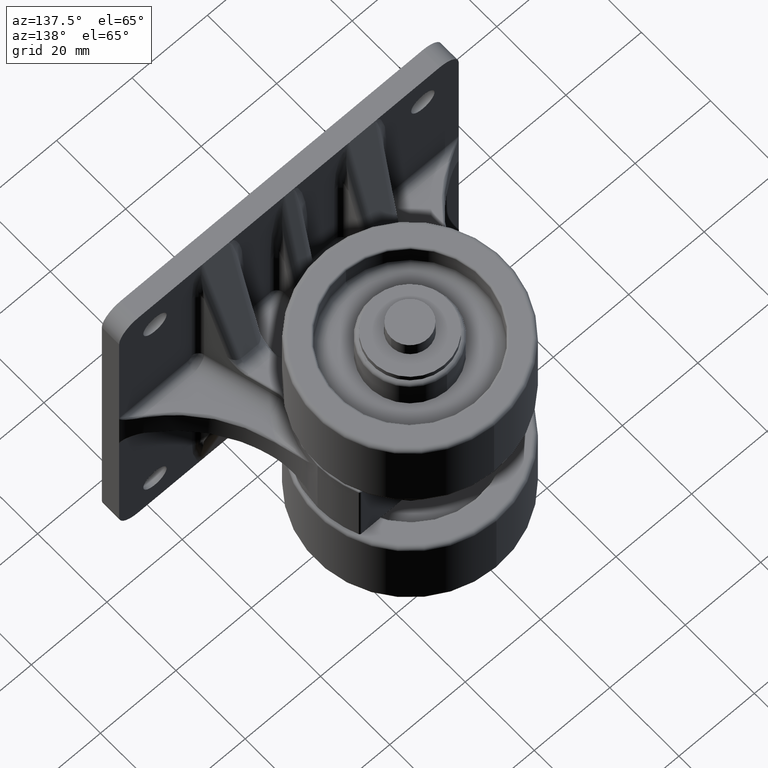
[diagram: clean part render]
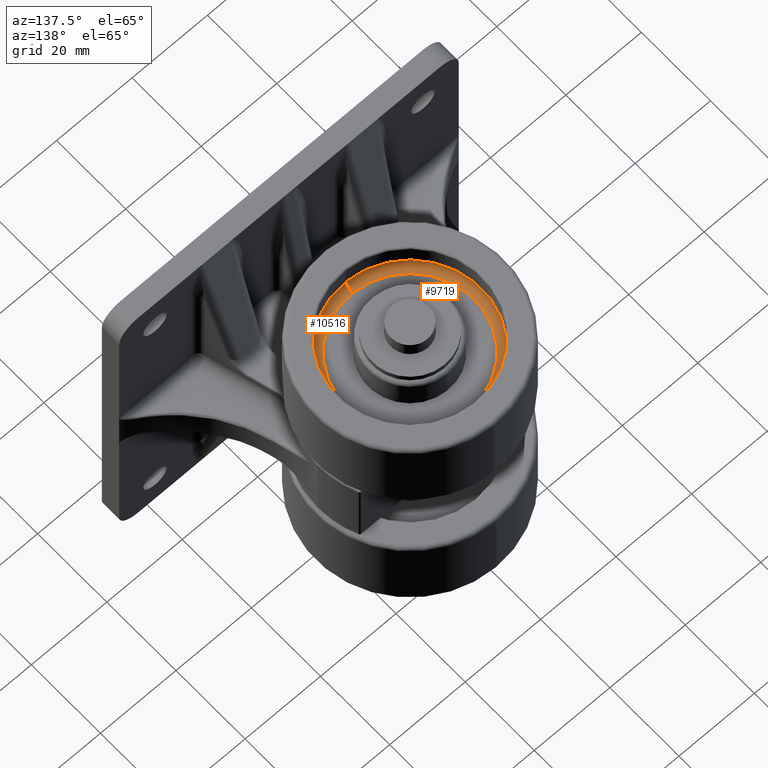
[diagram: same view with one multi-face feature highlighted, each face labeled with its STEP entity id]
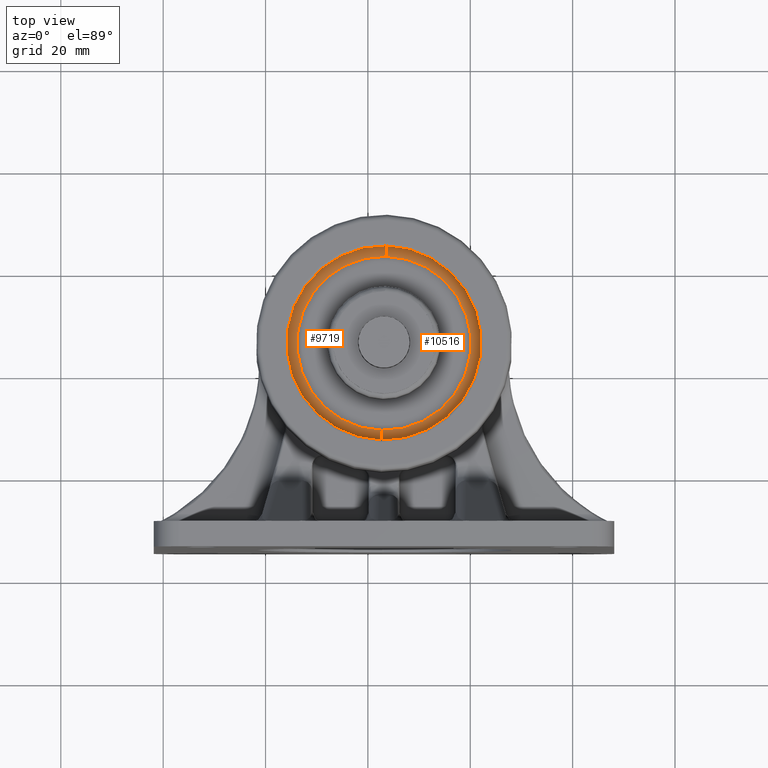
[diagram: same view with one multi-face feature highlighted, each face labeled with its STEP entity id]
A machine part, auxiliary view. The highlighted faces form ONE feature: a constant-radius fillet chain: 2 tangent blend faces with common blend radius 2 mm. The faces share edges in the B-rep.
A second angle (top view) of the same feature is appended — it is thin or edge-on in the first view.
Their STEP definitions:
[1] entity #9719 (Torus):
#52 = CARTESIAN_POINT ( 'NONE',  ( -28.50000000000000000, -18.99449178836998400, -45.45747317030110000 ) ) ;
#83 = EDGE_CURVE ( 'NONE', #16835, #12613, #6996, .T. ) ;
#84 = AXIS2_PLACEMENT_3D ( 'NONE', #15809, #7654, #2115 ) ;
#174 = EDGE_CURVE ( 'NONE', #16835, #5191, #5774, .T. ) ;
#279 = ORIENTED_EDGE ( 'NONE', *, *, #14841, .F. ) ;
#438 = CARTESIAN_POINT ( 'NONE',  ( -26.50000000000000400, -16.99507160012051400, -45.40931809974308900 ) ) ;
#747 = DIRECTION ( 'NONE',  ( 0.0000000000000000000, -0.9997100941247358800, -0.02407753527900523300 ) ) ;
#1888 = DIRECTION ( 'NONE',  ( 0.0000000000000000000, -0.9997100941247359900, -0.02407753527900523300 ) ) ;
#2115 = DIRECTION ( 'NONE',  ( 0.0000000000000000000, -0.9997100941247358800, -0.02407753527900597200 ) ) ;
#2198 = TOROIDAL_SURFACE ( 'NONE', #14664, 17.00000000000000000, 2.000000000000000000 ) ;
#3276 = EDGE_CURVE ( 'NONE', #5191, #6435, #13464, .T. ) ;
#4032 = DIRECTION ( 'NONE',  ( -1.000000000000000000, 0.0000000000000000000, 0.0000000000000000000 ) ) ;
#4118 = ORIENTED_EDGE ( 'NONE', *, *, #83, .T. ) ;
#4157 = AXIS2_PLACEMENT_3D ( 'NONE', #15856, #4485, #7330 ) ;
#4485 = DIRECTION ( 'NONE',  ( 0.0000000000000000000, 0.02407753527900525000, -0.9997100941247359900 ) ) ;
#4597 = CARTESIAN_POINT ( 'NONE',  ( -26.50000000000000400, 16.99507160012051400, -44.59068190025690400 ) ) ;
#5191 = VERTEX_POINT ( 'NONE', #438 ) ;
#5209 = FACE_OUTER_BOUND ( 'NONE', #15731, .T. ) ;
#5774 = CIRCLE ( 'NONE', #8702, 17.00000000000000400 ) ;
#6009 = ORIENTED_EDGE ( 'NONE', *, *, #3276, .F. ) ;
#6435 = VERTEX_POINT ( 'NONE', #52 ) ;
#6539 = CIRCLE ( 'NONE', #7793, 19.00000000000000400 ) ;
#6996 = CIRCLE ( 'NONE', #84, 1.999999999999999800 ) ;
#7330 = DIRECTION ( 'NONE',  ( 0.0000000000000000000, 0.9997100941247358800, 0.02407753527900597200 ) ) ;
#7654 = DIRECTION ( 'NONE',  ( 0.0000000000000000000, -0.02407753527900537100, 0.9997100941247359900 ) ) ;
#7793 = AXIS2_PLACEMENT_3D ( 'NONE', #16612, #8471, #747 ) ;
#8332 = DIRECTION ( 'NONE',  ( -1.000000000000000000, 0.0000000000000000000, 0.0000000000000000000 ) ) ;
#8471 = DIRECTION ( 'NONE',  ( 1.000000000000000000, -0.0000000000000000000, -0.0000000000000000000 ) ) ;
#8702 = AXIS2_PLACEMENT_3D ( 'NONE', #11991, #4032, #13307 ) ;
#9719 = ADVANCED_FACE ( 'NONE', ( #5209 ), #2198, .F. ) ;
#10474 = CARTESIAN_POINT ( 'NONE',  ( -28.50000000000000000, 0.0000000000000000000, -45.00000000000000000 ) ) ;
#11991 = CARTESIAN_POINT ( 'NONE',  ( -26.50000000000000400, 0.0000000000000000000, -45.00000000000000000 ) ) ;
#12613 = VERTEX_POINT ( 'NONE', #16850 ) ;
#13307 = DIRECTION ( 'NONE',  ( 0.0000000000000000000, -0.9997100941247358800, -0.02407753527900514600 ) ) ;
#13464 = CIRCLE ( 'NONE', #4157, 1.999999999999999800 ) ;
#14352 = ORIENTED_EDGE ( 'NONE', *, *, #174, .F. ) ;
#14664 = AXIS2_PLACEMENT_3D ( 'NONE', #10474, #8332, #1888 ) ;
#14841 = EDGE_CURVE ( 'NONE', #6435, #12613, #6539, .T. ) ;
#15731 = EDGE_LOOP ( 'NONE', ( #14352, #4118, #279, #6009 ) ) ;
#15809 = CARTESIAN_POINT ( 'NONE',  ( -28.50000000000000000, 16.99507160012051400, -44.59068190025690400 ) ) ;
#15856 = CARTESIAN_POINT ( 'NONE',  ( -28.50000000000000000, -16.99507160012051400, -45.40931809974308900 ) ) ;
#16612 = CARTESIAN_POINT ( 'NONE',  ( -28.50000000000000000, 0.0000000000000000000, -45.00000000000000000 ) ) ;
#16835 = VERTEX_POINT ( 'NONE', #4597 ) ;
#16850 = CARTESIAN_POINT ( 'NONE',  ( -28.50000000000000000, 18.99449178836998400, -44.54252682969890000 ) ) ;
[2] entity #10516 (Torus):
#52 = CARTESIAN_POINT ( 'NONE',  ( -28.50000000000000000, -18.99449178836998400, -45.45747317030110000 ) ) ;
#83 = EDGE_CURVE ( 'NONE', #16835, #12613, #6996, .T. ) ;
#84 = AXIS2_PLACEMENT_3D ( 'NONE', #15809, #7654, #2115 ) ;
#438 = CARTESIAN_POINT ( 'NONE',  ( -26.50000000000000400, -16.99507160012051400, -45.40931809974308900 ) ) ;
#804 = CIRCLE ( 'NONE', #6629, 17.00000000000000400 ) ;
#1129 = CARTESIAN_POINT ( 'NONE',  ( -26.50000000000000400, 0.0000000000000000000, -45.00000000000000000 ) ) ;
#2115 = DIRECTION ( 'NONE',  ( 0.0000000000000000000, -0.9997100941247358800, -0.02407753527900597200 ) ) ;
#2386 = DIRECTION ( 'NONE',  ( 0.0000000000000000000, -0.9997100941247358800, -0.02407753527900514600 ) ) ;
#2802 = TOROIDAL_SURFACE ( 'NONE', #11538, 17.00000000000000000, 2.000000000000000000 ) ;
#3251 = CARTESIAN_POINT ( 'NONE',  ( -28.50000000000000000, 0.0000000000000000000, -45.00000000000000000 ) ) ;
#3276 = EDGE_CURVE ( 'NONE', #5191, #6435, #13464, .T. ) ;
#3343 = CIRCLE ( 'NONE', #13876, 19.00000000000000400 ) ;
#4157 = AXIS2_PLACEMENT_3D ( 'NONE', #15856, #4485, #7330 ) ;
#4485 = DIRECTION ( 'NONE',  ( 0.0000000000000000000, 0.02407753527900525000, -0.9997100941247359900 ) ) ;
#4520 = DIRECTION ( 'NONE',  ( 0.0000000000000000000, -0.9997100941247359900, -0.02407753527900523300 ) ) ;
#4597 = CARTESIAN_POINT ( 'NONE',  ( -26.50000000000000400, 16.99507160012051400, -44.59068190025690400 ) ) ;
#5191 = VERTEX_POINT ( 'NONE', #438 ) ;
#5803 = ORIENTED_EDGE ( 'NONE', *, *, #12579, .F. ) ;
#6018 = CARTESIAN_POINT ( 'NONE',  ( -28.50000000000000000, 0.0000000000000000000, -45.00000000000000000 ) ) ;
#6178 = FACE_OUTER_BOUND ( 'NONE', #8124, .T. ) ;
#6435 = VERTEX_POINT ( 'NONE', #52 ) ;
#6629 = AXIS2_PLACEMENT_3D ( 'NONE', #1129, #10282, #2386 ) ;
#6996 = CIRCLE ( 'NONE', #84, 1.999999999999999800 ) ;
#7330 = DIRECTION ( 'NONE',  ( 0.0000000000000000000, 0.9997100941247358800, 0.02407753527900597200 ) ) ;
#7348 = DIRECTION ( 'NONE',  ( 0.0000000000000000000, -0.9997100941247358800, -0.02407753527900523300 ) ) ;
#7354 = ORIENTED_EDGE ( 'NONE', *, *, #83, .F. ) ;
#7654 = DIRECTION ( 'NONE',  ( 0.0000000000000000000, -0.02407753527900537100, 0.9997100941247359900 ) ) ;
#8124 = EDGE_LOOP ( 'NONE', ( #7354, #14382, #8318, #5803 ) ) ;
#8318 = ORIENTED_EDGE ( 'NONE', *, *, #3276, .T. ) ;
#10282 = DIRECTION ( 'NONE',  ( -1.000000000000000000, 0.0000000000000000000, 0.0000000000000000000 ) ) ;
#10516 = ADVANCED_FACE ( 'NONE', ( #6178 ), #2802, .F. ) ;
#10695 = EDGE_CURVE ( 'NONE', #5191, #16835, #804, .T. ) ;
#11538 = AXIS2_PLACEMENT_3D ( 'NONE', #3251, #12451, #4520 ) ;
#12451 = DIRECTION ( 'NONE',  ( -1.000000000000000000, 0.0000000000000000000, 0.0000000000000000000 ) ) ;
#12579 = EDGE_CURVE ( 'NONE', #12613, #6435, #3343, .T. ) ;
#12613 = VERTEX_POINT ( 'NONE', #16850 ) ;
#13464 = CIRCLE ( 'NONE', #4157, 1.999999999999999800 ) ;
#13876 = AXIS2_PLACEMENT_3D ( 'NONE', #6018, #15486, #7348 ) ;
#14382 = ORIENTED_EDGE ( 'NONE', *, *, #10695, .F. ) ;
#15486 = DIRECTION ( 'NONE',  ( 1.000000000000000000, -0.0000000000000000000, -0.0000000000000000000 ) ) ;
#15809 = CARTESIAN_POINT ( 'NONE',  ( -28.50000000000000000, 16.99507160012051400, -44.59068190025690400 ) ) ;
#15856 = CARTESIAN_POINT ( 'NONE',  ( -28.50000000000000000, -16.99507160012051400, -45.40931809974308900 ) ) ;
#16835 = VERTEX_POINT ( 'NONE', #4597 ) ;
#16850 = CARTESIAN_POINT ( 'NONE',  ( -28.50000000000000000, 18.99449178836998400, -44.54252682969890000 ) ) ;